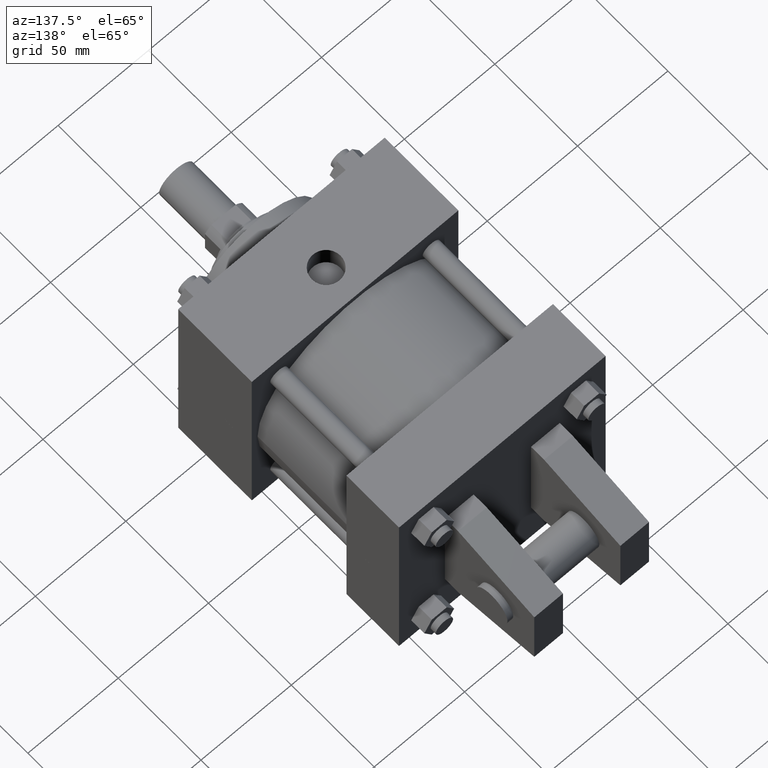
[diagram: clean part render]
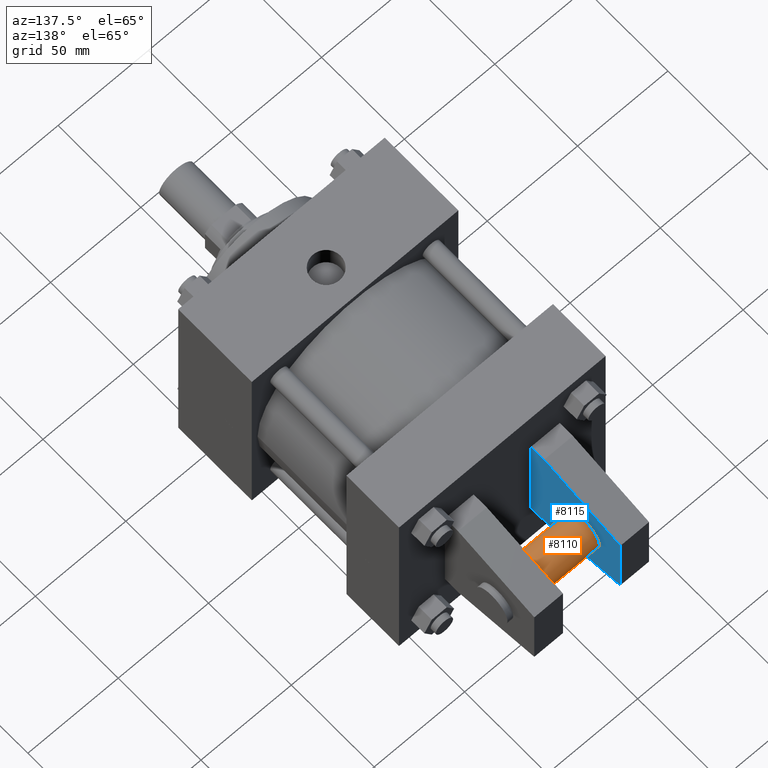
[diagram: same view with the hole feature highlighted: cylindrical wall and planar end face, labeled with their STEP entity ids]
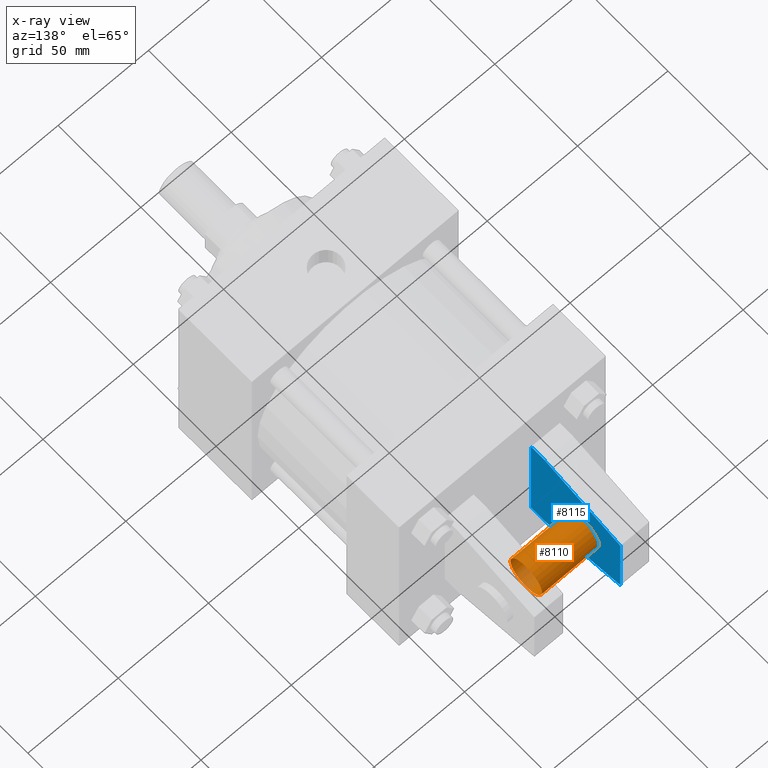
[diagram: x-ray of the same camera — body ghosted, the hole faces saturated]
A machine part, auxiliary view. The highlighted faces form one hole feature of diameter 19.05 mm: the cylindrical wall (entity #8110, orange) and its adjacent planar end face (entity #8115, blue) — they share a circular edge in the B-rep.
The next image is the same camera in x-ray (body ghosted, the hole faces saturated) — the bore reads through the body.
Wall:
#4359=FACE_OUTER_BOUND('',#4361,.T.);
#4360=FACE_BOUND('',#4362,.T.);
#4361=EDGE_LOOP('',(#4363));
#4362=EDGE_LOOP('',(#4372));
#4363=ORIENTED_EDGE('',*,*,#4364,.T.);
#4364=EDGE_CURVE('',#4370,#4370,#4365,.T.);
#4365=CIRCLE('',#4366,9.525000000E+000);
#4366=AXIS2_PLACEMENT_3D('',#4367,#4368,#4369);
#4367=CARTESIAN_POINT('',(-1.587500000E+001,2.000250000E+002,0.000000000E+000));
#4368=DIRECTION('',(1.0E+000,0.0E+000,0.0E+000));
#4369=DIRECTION('',(0.0E+000,-1.0E+000,0.0E+000));
#4370=VERTEX_POINT('',#4371);
#4371=CARTESIAN_POINT('',(-1.587500000E+001,1.905000000E+002,0.000000000E+000));
#4372=ORIENTED_EDGE('',*,*,#4373,.T.);
#4373=EDGE_CURVE('',#4379,#4379,#4374,.T.);
#4374=CIRCLE('',#4375,9.525000000E+000);
#4375=AXIS2_PLACEMENT_3D('',#4376,#4377,#4378);
#4376=CARTESIAN_POINT('',(1.587500000E+001,2.000250000E+002,0.000000000E+000));
#4377=DIRECTION('',(-1.0E+000,0.0E+000,0.0E+000));
#4378=DIRECTION('',(0.0E+000,1.0E+000,0.0E+000));
#4379=VERTEX_POINT('',#4380);
#4380=CARTESIAN_POINT('',(1.587500000E+001,2.095500000E+002,0.000000000E+000));
#4381=CYLINDRICAL_SURFACE('',#4382,9.525000000E+000);
#4382=AXIS2_PLACEMENT_3D('',#4383,#4384,#4385);
#4383=CARTESIAN_POINT('',(-1.587500000E+001,2.000250000E+002,0.000000000E+000));
#4384=DIRECTION('',(1.0E+000,0.0E+000,0.0E+000));
#4385=DIRECTION('',(0.0E+000,-1.0E+000,0.0E+000));
#8110=ADVANCED_FACE('',(#4359,#4360),#4381,.T.);
End face:
#4364=EDGE_CURVE('',#4370,#4370,#4365,.T.);
#4365=CIRCLE('',#4366,9.525000000E+000);
#4366=AXIS2_PLACEMENT_3D('',#4367,#4368,#4369);
#4367=CARTESIAN_POINT('',(-1.587500000E+001,2.000250000E+002,0.000000000E+000));
#4368=DIRECTION('',(1.0E+000,0.0E+000,0.0E+000));
#4369=DIRECTION('',(0.0E+000,-1.0E+000,0.0E+000));
#4370=VERTEX_POINT('',#4371);
#4371=CARTESIAN_POINT('',(-1.587500000E+001,1.905000000E+002,0.000000000E+000));
#4456=FACE_OUTER_BOUND('',#4458,.T.);
#4457=FACE_BOUND('',#4459,.T.);
#4458=EDGE_LOOP('',(#4460));
#4459=EDGE_LOOP('',(#4461,#4462,#4463,#4464,#4465,#4466));
#4460=ORIENTED_EDGE('',*,*,#4364,.F.);
#4461=ORIENTED_EDGE('',*,*,#4467,.T.);
#4462=ORIENTED_EDGE('',*,*,#4476,.T.);
#4463=ORIENTED_EDGE('',*,*,#4483,.T.);
#4464=ORIENTED_EDGE('',*,*,#4490,.T.);
#4465=ORIENTED_EDGE('',*,*,#4497,.T.);
#4466=ORIENTED_EDGE('',*,*,#4504,.F.);
#4467=EDGE_CURVE('',#4472,#4473,#4468,.T.);
#4468=LINE('',#4469,#4470);
#4469=CARTESIAN_POINT('',(-1.587500000E+001,1.682750000E+002,-2.936875000E+001));
#4470=VECTOR('',#4471,1.0E+000);
#4471=DIRECTION('',(0.0E+000,1.0E+000,0.0E+000));
#4472=VERTEX_POINT('',#4474);
#4473=VERTEX_POINT('',#4475);
#4474=CARTESIAN_POINT('',(-1.587500000E+001,1.682750000E+002,-2.936875000E+001));
#4475=CARTESIAN_POINT('',(-1.587500000E+001,1.762125000E+002,-2.936875000E+001));
#4476=EDGE_CURVE('',#4473,#4481,#4477,.T.);
#4477=LINE('',#4478,#4479);
#4478=CARTESIAN_POINT('',(-1.587500000E+001,1.762125000E+002,-2.936875000E+001));
#4479=VECTOR('',#4480,1.0E+000);
#4480=DIRECTION('',(0.0E+000,9.757895770E-001,2.187114569E-001));
#4481=VERTEX_POINT('',#4482);
#4482=CARTESIAN_POINT('',(-1.587500000E+001,2.222500000E+002,-1.905000000E+001));
#4483=EDGE_CURVE('',#4481,#4488,#4484,.T.);
#4484=LINE('',#4485,#4486);
#4485=CARTESIAN_POINT('',(-1.587500000E+001,2.222500000E+002,-1.905000000E+001));
#4486=VECTOR('',#4487,1.0E+000);
#4487=DIRECTION('',(0.0E+000,0.0E+000,1.0E+000));
#4488=VERTEX_POINT('',#4489);
#4489=CARTESIAN_POINT('',(-1.587500000E+001,2.222500000E+002,1.905000000E+001));
#4490=EDGE_CURVE('',#4488,#4495,#4491,.T.);
#4491=LINE('',#4492,#4493);
#4492=CARTESIAN_POINT('',(-1.587500000E+001,2.222500000E+002,1.905000000E+001));
#4493=VECTOR('',#4494,1.0E+000);
#4494=DIRECTION('',(0.0E+000,-9.757895770E-001,2.187114569E-001));
#4495=VERTEX_POINT('',#4496);
#4496=CARTESIAN_POINT('',(-1.587500000E+001,1.762125000E+002,2.936875000E+001));
#4497=EDGE_CURVE('',#4495,#4502,#4498,.T.);
#4498=LINE('',#4499,#4500);
#4499=CARTESIAN_POINT('',(-1.587500000E+001,1.762125000E+002,2.936875000E+001));
#4500=VECTOR('',#4501,1.0E+000);
#4501=DIRECTION('',(0.0E+000,-1.0E+000,0.0E+000));
#4502=VERTEX_POINT('',#4503);
#4503=CARTESIAN_POINT('',(-1.587500000E+001,1.682750000E+002,2.936875000E+001));
#4504=EDGE_CURVE('',#4472,#4502,#4505,.T.);
#4505=LINE('',#4506,#4507);
#4506=CARTESIAN_POINT('',(-1.587500000E+001,1.682750000E+002,-5.715000000E+001));
#4507=VECTOR('',#4508,1.0E+000);
#4508=DIRECTION('',(0.0E+000,0.0E+000,1.0E+000));
#4509=PLANE('',#4510);
#4510=AXIS2_PLACEMENT_3D('',#4511,#4512,#4513);
#4511=CARTESIAN_POINT('',(-1.587500000E+001,1.682750000E+002,-5.715000000E+001));
#4512=DIRECTION('',(1.0E+000,0.0E+000,0.0E+000));
#4513=DIRECTION('',(0.0E+000,-1.0E+000,0.0E+000));
#8115=ADVANCED_FACE('',(#4456,#4457),#4509,.T.);